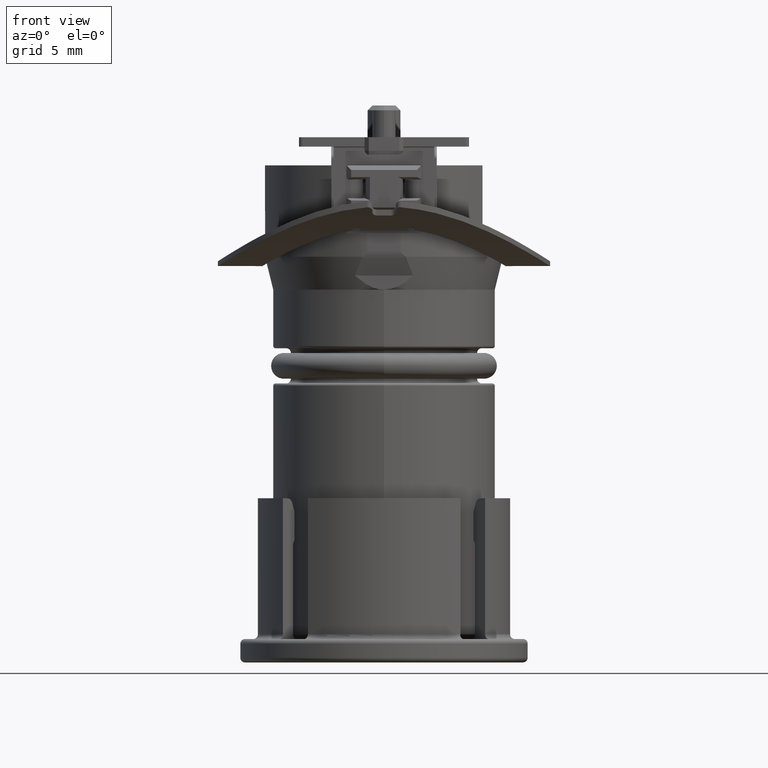
[diagram: clean part render]
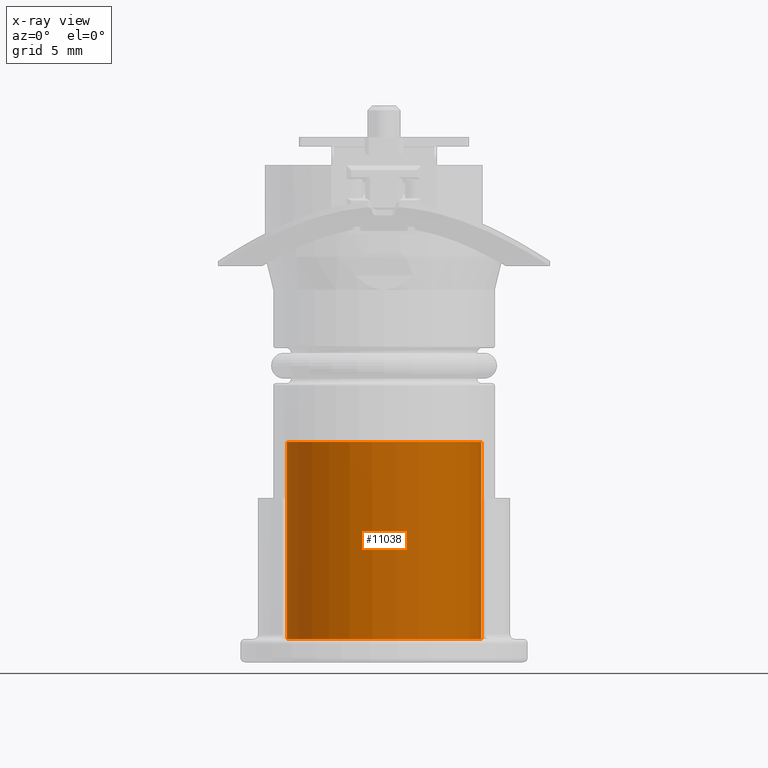
[diagram: x-ray — body ghosted, one internal face saturated and labeled with its STEP entity id]
A machine part, front view, then the same camera in x-ray: the body is ghosted and one INTERNAL B-rep face — a face not visible from any outside direction — is saturated and labeled: STEP entity #11038.
In plain terms, the highlighted cylindrical surface (partial cylindrical patch) has radius 4.15 mm, axis along (0, 0, 1).
Its self-contained STEP definition (entity closure, byte-faithful):
#750=CARTESIAN_POINT('',(0.E0,0.E0,-1.3E1));
#751=DIRECTION('',(0.E0,0.E0,-1.E0));
#752=DIRECTION('',(1.445783132530E-1,9.894933609362E-1,0.E0));
#753=AXIS2_PLACEMENT_3D('',#750,#751,#752);
#755=DIRECTION('',(0.E0,0.E0,1.E0));
#756=VECTOR('',#755,8.4E0);
#757=CARTESIAN_POINT('',(-6.E-1,4.106397447885E0,-2.14E1));
#758=LINE('',#757,#756);
#759=CARTESIAN_POINT('',(0.E0,0.E0,-2.14E1));
#760=DIRECTION('',(0.E0,0.E0,1.E0));
#761=DIRECTION('',(-1.445783132530E-1,9.894933609362E-1,0.E0));
#762=AXIS2_PLACEMENT_3D('',#759,#760,#761);
#764=DIRECTION('',(0.E0,0.E0,1.E0));
#765=VECTOR('',#764,8.4E0);
#766=CARTESIAN_POINT('',(6.E-1,4.106397447885E0,-2.14E1));
#767=LINE('',#766,#765);
#8196=CARTESIAN_POINT('',(6.E-1,4.106397447885E0,-2.14E1));
#8197=CARTESIAN_POINT('',(6.E-1,4.106397447885E0,-1.3E1));
#8198=VERTEX_POINT('',#8196);
#8199=VERTEX_POINT('',#8197);
#8203=CARTESIAN_POINT('',(-6.E-1,4.106397447885E0,-1.3E1));
#8205=VERTEX_POINT('',#8203);
#8206=CARTESIAN_POINT('',(-6.E-1,4.106397447885E0,-2.14E1));
#8207=VERTEX_POINT('',#8206);
#11024=CARTESIAN_POINT('',(0.E0,0.E0,-2.247E1));
#11025=DIRECTION('',(0.E0,0.E0,1.E0));
#11026=DIRECTION('',(0.E0,1.E0,0.E0));
#11027=AXIS2_PLACEMENT_3D('',#11024,#11025,#11026);
#11028=CYLINDRICAL_SURFACE('',#11027,4.15E0);
#11030=ORIENTED_EDGE('',*,*,#11029,.T.);
#11032=ORIENTED_EDGE('',*,*,#11031,.F.);
#11033=ORIENTED_EDGE('',*,*,#10975,.T.);
#11035=ORIENTED_EDGE('',*,*,#11034,.T.);
#11036=EDGE_LOOP('',(#11030,#11032,#11033,#11035));
#11037=FACE_OUTER_BOUND('',#11036,.F.);
#754=CIRCLE('',#753,4.15E0);
#763=CIRCLE('',#762,4.15E0);
#10975=EDGE_CURVE('',#8207,#8198,#763,.T.);
#11029=EDGE_CURVE('',#8199,#8205,#754,.T.);
#11031=EDGE_CURVE('',#8207,#8205,#758,.T.);
#11034=EDGE_CURVE('',#8198,#8199,#767,.T.);
#11038=ADVANCED_FACE('',(#11037),#11028,.F.);